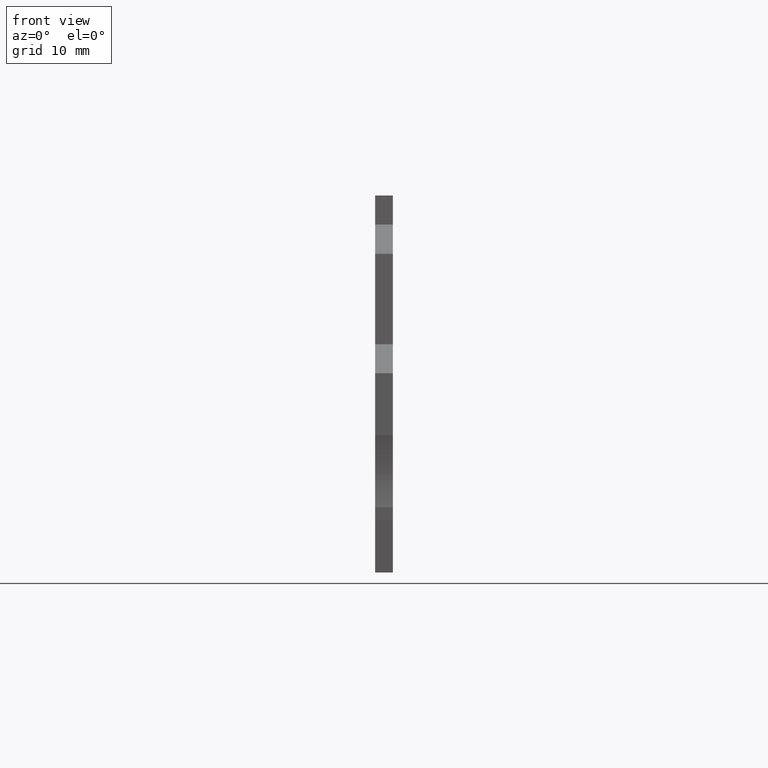
[diagram: clean part render]
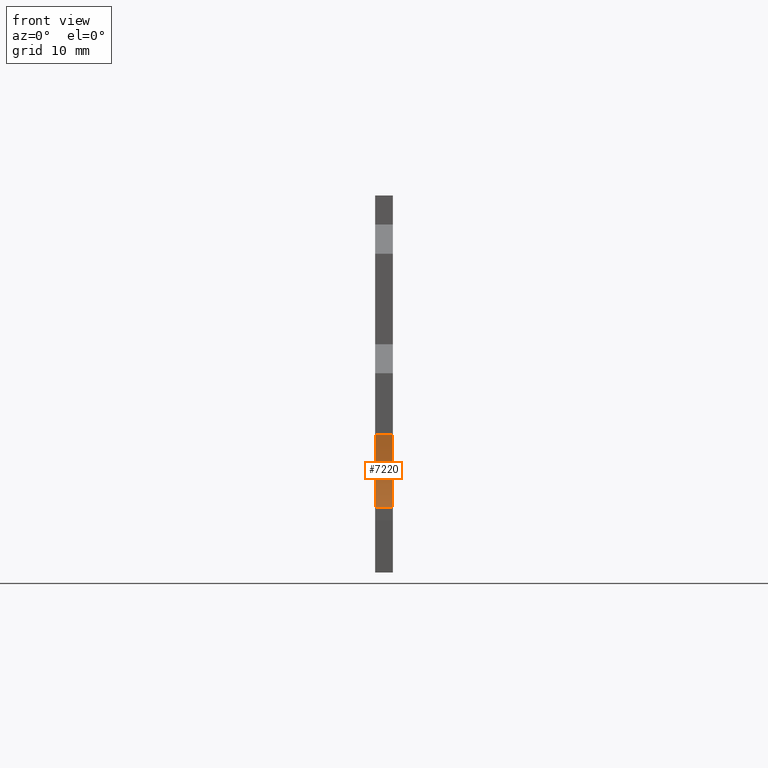
[diagram: same view with one face highlighted and labeled with its STEP entity id]
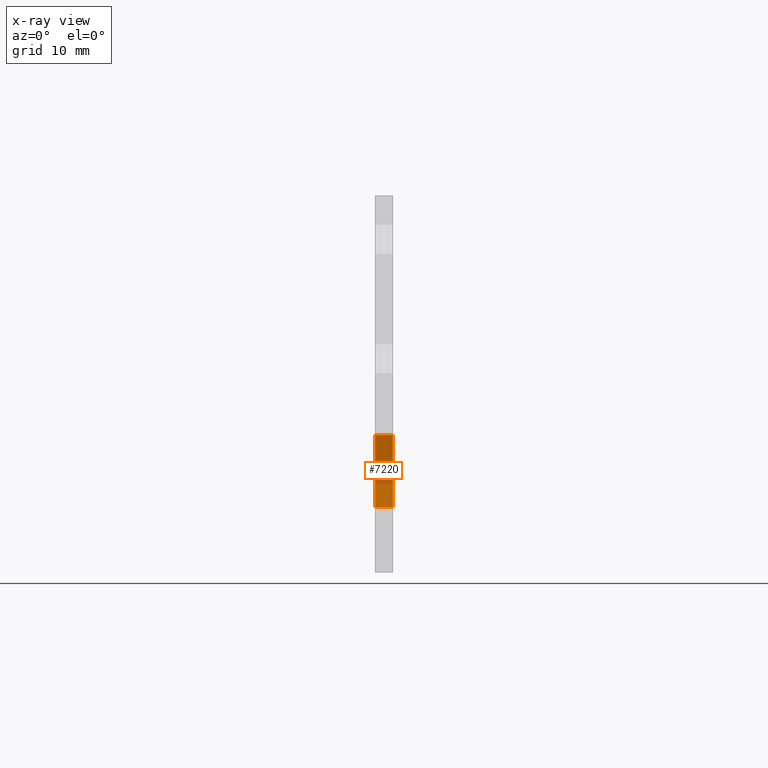
[diagram: x-ray of the same camera — body ghosted, the highlighted face saturated]
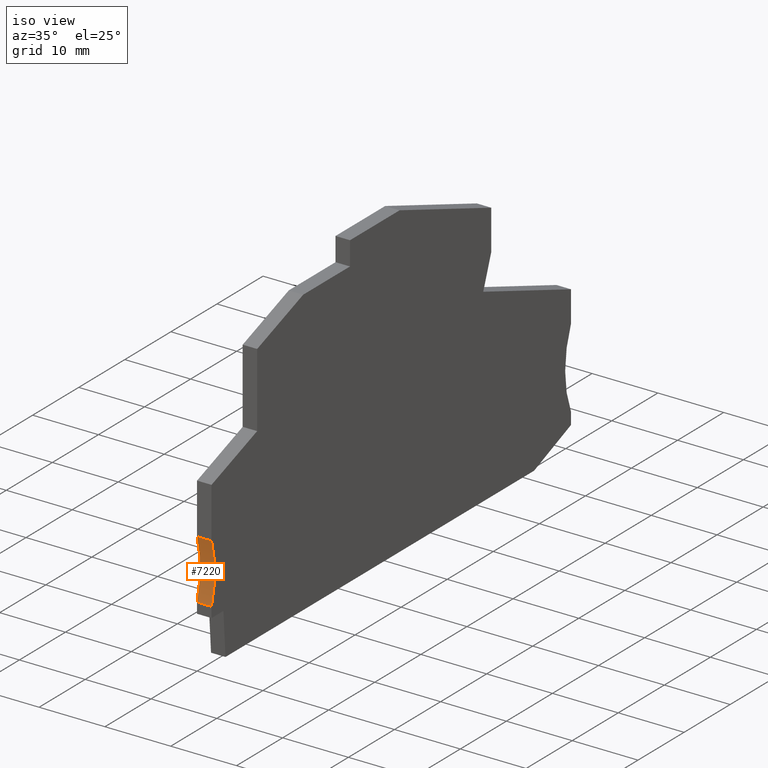
[diagram: same view with one face highlighted and labeled with its STEP entity id]
A machine part, front view. The second image highlights one B-rep face of the part: STEP entity #7220.
The next image is the same camera in x-ray: the body ghosted, the highlighted face saturated — about 0% of this face is hidden behind the body in this view.
A second angle (iso view) of the same face is appended — the face is thin or edge-on in the first view.
In plain terms, the highlighted cylindrical surface (partial cylindrical patch) has radius 15 mm, axis along (1, 0, 0).
Its self-contained STEP definition (entity closure, byte-faithful):
#120=CARTESIAN_POINT('',(-54.1000000000011,-3.31547575273037,
-6.3948846218409E-14));
#130=VERTEX_POINT('',#120);
#1570=CARTESIAN_POINT('',(-54.1,5.68452424726971,-6.3948846218409E-14));
#1580=VERTEX_POINT('',#1570);
#1610=CARTESIAN_POINT('',(-68.4090880212549,1.18452424727143,
-6.3948846218409E-14));
#1620=DIRECTION('',(0.,0.,1.));
#1630=DIRECTION('',(1.,0.,0.));
#1640=AXIS2_PLACEMENT_3D('',#1610,#1620,#1630);
#1650=CIRCLE('',#1640,15.0000000000001);
#1660=EDGE_CURVE('',#130,#1580,#1650,.T.);
#1830=CARTESIAN_POINT('',(-68.4090880212549,1.18452424727143,
2.19999999999994));
#1840=DIRECTION('',(0.,0.,1.));
#1850=DIRECTION('',(1.,0.,0.));
#1860=AXIS2_PLACEMENT_3D('',#1830,#1840,#1850);
#1870=CIRCLE('',#1860,15.0000000000001);
#1880=CARTESIAN_POINT('',(-54.1000000000011,-3.31547575273034,
2.19999999999994));
#1890=VERTEX_POINT('',#1880);
#1900=CARTESIAN_POINT('',(-54.1,5.68452424726971,2.19999999999994));
#1910=VERTEX_POINT('',#1900);
#1920=EDGE_CURVE('',#1890,#1910,#1870,.T.);
#6660=CARTESIAN_POINT('',(-54.1,5.68452424726971,-6.3948846218409E-14));
#6670=DIRECTION('',(0.,0.,-1.));
#6680=VECTOR('',#6670,1.);
#6690=LINE('',#6660,#6680);
#6700=EDGE_CURVE('',#1910,#1580,#6690,.T.);
#7060=CARTESIAN_POINT('',(-68.4090880212549,1.18452424727143,
-6.3948846218409E-14));
#7070=DIRECTION('',(0.,0.,1.));
#7080=DIRECTION('',(1.,0.,0.));
#7090=AXIS2_PLACEMENT_3D('',#7060,#7070,#7080);
#7100=CYLINDRICAL_SURFACE('',#7090,15.0000000000001);
#7110=ORIENTED_EDGE('',*,*,#1660,.F.);
#7120=ORIENTED_EDGE('',*,*,#6700,.T.);
#7130=ORIENTED_EDGE('',*,*,#1920,.T.);
#7140=CARTESIAN_POINT('',(-54.1000000000011,-3.31547575273037,
-6.3948846218409E-14));
#7150=DIRECTION('',(0.,0.,-1.));
#7160=VECTOR('',#7150,1.);
#7170=LINE('',#7140,#7160);
#7180=EDGE_CURVE('',#1890,#130,#7170,.T.);
#7190=ORIENTED_EDGE('',*,*,#7180,.F.);
#7200=EDGE_LOOP('',(#7190,#7130,#7120,#7110));
#7210=FACE_OUTER_BOUND('',#7200,.T.);
#7220=ADVANCED_FACE('',(#7210),#7100,.F.);